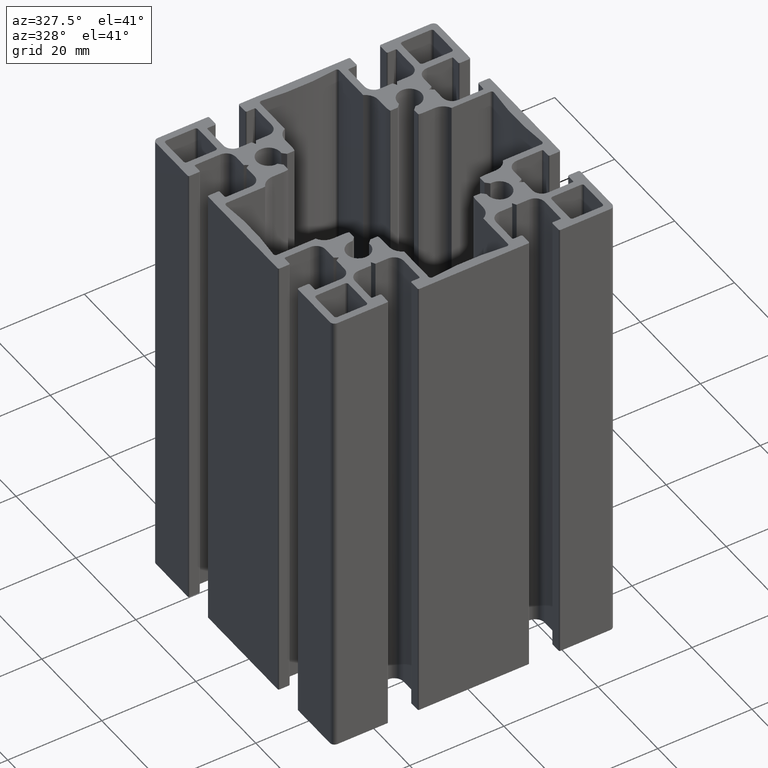
[diagram: clean part render]
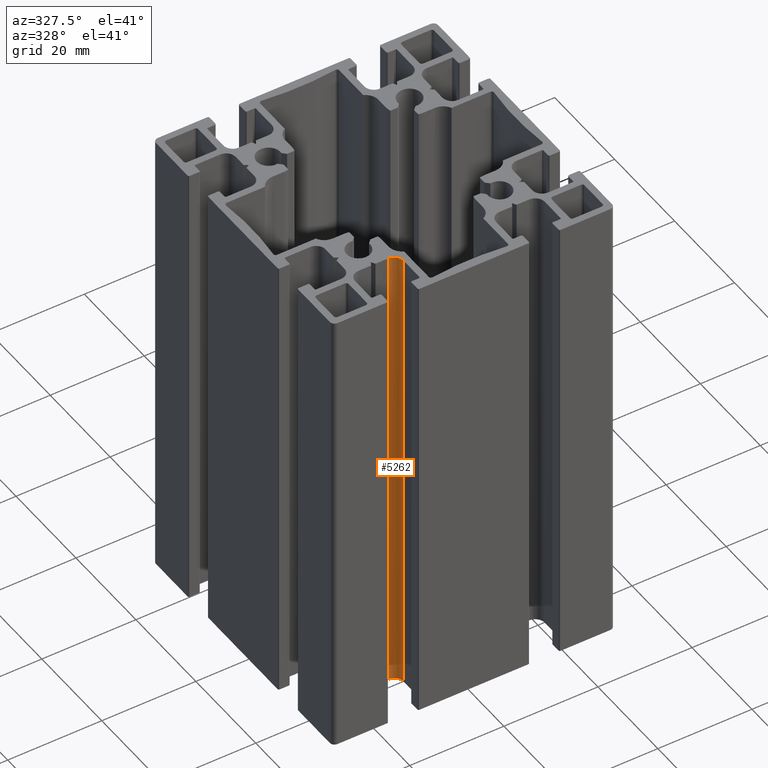
[diagram: same view with one face highlighted and labeled with its STEP entity id]
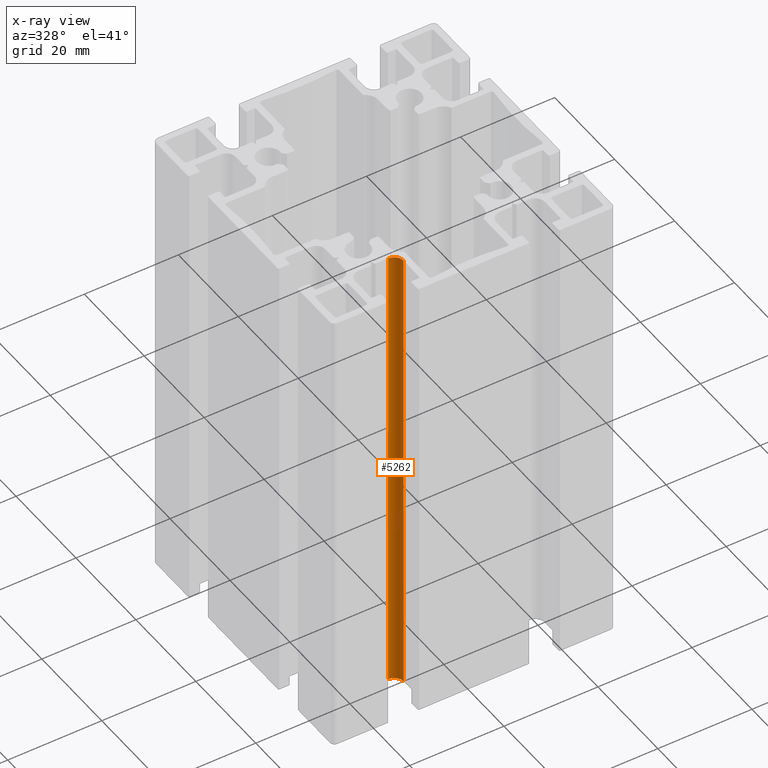
[diagram: x-ray of the same camera — body ghosted, the highlighted face saturated]
A machine part, auxiliary view. The second image highlights one B-rep face of the part: STEP entity #5262.
The next image is the same camera in x-ray: the body ghosted, the highlighted face saturated — about 0% of this face is hidden behind the body in this view.
In plain terms, the highlighted cylindrical surface (edge-blend (fillet) strip) has radius 2.0067 mm, axis along (0, 0, 1).
Its self-contained STEP definition (entity closure, byte-faithful):
#63=CIRCLE('',#5412,2.00668890000006);
#191=CIRCLE('',#5544,2.00668890000006);
#364=CYLINDRICAL_SURFACE('',#5799,2.00668890000006);
#586=FACE_OUTER_BOUND('',#862,.T.);
#862=EDGE_LOOP('',(#4623,#4624,#4625,#4626));
#1406=LINE('',#8883,#1950);
#1407=LINE('',#8885,#1951);
#1950=VECTOR('',#7219,10.);
#1951=VECTOR('',#7222,10.);
#2135=VERTEX_POINT('',#7684);
#2136=VERTEX_POINT('',#7686);
#2394=VERTEX_POINT('',#8214);
#2395=VERTEX_POINT('',#8216);
#2669=EDGE_CURVE('',#2135,#2136,#63,.T.);
#2936=EDGE_CURVE('',#2395,#2394,#191,.T.);
#3270=EDGE_CURVE('',#2394,#2136,#1406,.T.);
#3271=EDGE_CURVE('',#2395,#2135,#1407,.T.);
#4623=ORIENTED_EDGE('',*,*,#2936,.T.);
#4624=ORIENTED_EDGE('',*,*,#3270,.T.);
#4625=ORIENTED_EDGE('',*,*,#2669,.F.);
#4626=ORIENTED_EDGE('',*,*,#3271,.F.);
#5262=ADVANCED_FACE('',(#586),#364,.F.);
#5412=AXIS2_PLACEMENT_3D('',#7687,#6054,#6055);
#5544=AXIS2_PLACEMENT_3D('',#8217,#6457,#6458);
#5799=AXIS2_PLACEMENT_3D('',#8884,#7220,#7221);
#6054=DIRECTION('center_axis',(0.,0.,-1.));
#6055=DIRECTION('ref_axis',(-1.,-7.25878639338743E-13,0.));
#6457=DIRECTION('center_axis',(0.,0.,-1.));
#6458=DIRECTION('ref_axis',(-1.,-7.25878639338743E-13,0.));
#7219=DIRECTION('',(0.,0.,1.));
#7220=DIRECTION('center_axis',(0.,0.,1.));
#7221=DIRECTION('ref_axis',(-1.,-7.25878639338743E-13,0.));
#7222=DIRECTION('',(0.,0.,1.));
#7684=CARTESIAN_POINT('',(-11.8394645099994,-19.9665545549998,100.));
#7686=CARTESIAN_POINT('',(-9.83277560999969,-21.9732434549984,100.));
#7687=CARTESIAN_POINT('Origin',(-11.8394645099998,-21.9732434549998,100.));
#8214=CARTESIAN_POINT('',(-9.83277560999969,-21.9732434549984,0.));
#8216=CARTESIAN_POINT('',(-11.8394645099994,-19.9665545549998,0.));
#8217=CARTESIAN_POINT('Origin',(-11.8394645099998,-21.9732434549998,0.));
#8883=CARTESIAN_POINT('',(-9.83277560999969,-21.9732434549984,0.));
#8884=CARTESIAN_POINT('Origin',(-11.8394645099998,-21.9732434549998,0.));
#8885=CARTESIAN_POINT('',(-11.8394645099994,-19.9665545549998,0.));